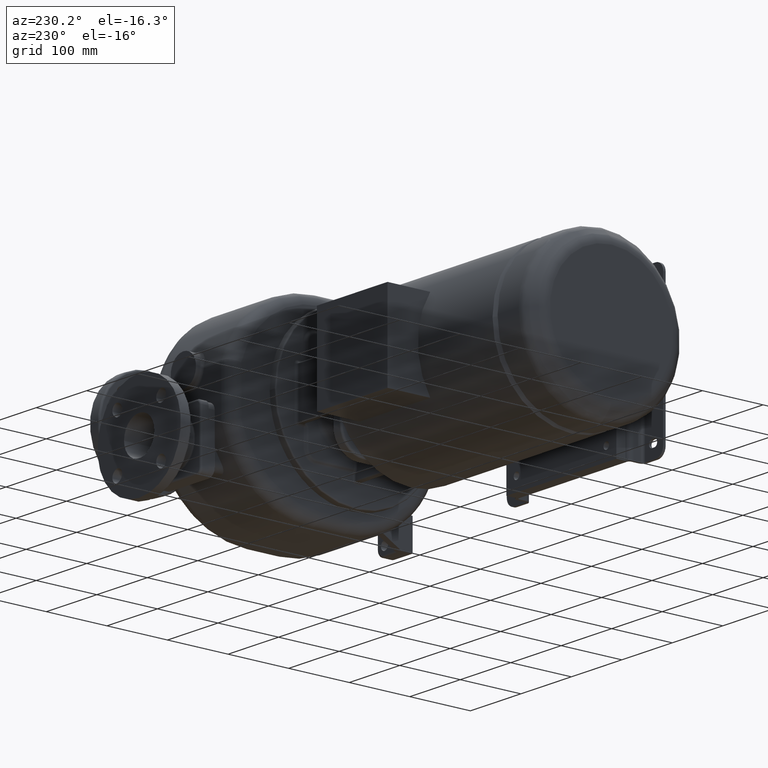
[diagram: clean part render]
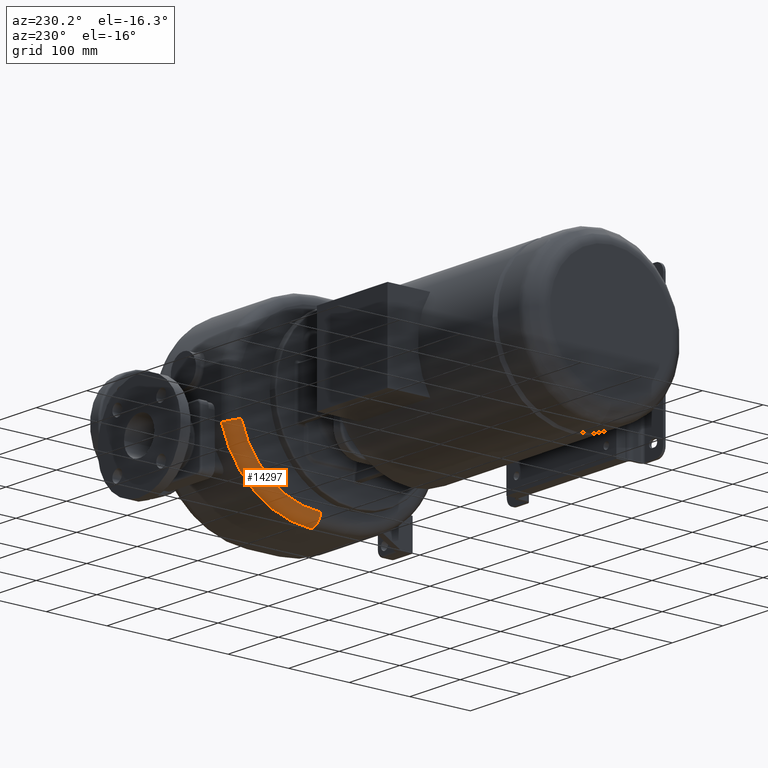
[diagram: same view with one face highlighted and labeled with its STEP entity id]
A machine part, auxiliary view. The second image highlights one B-rep face of the part: STEP entity #14297.
In plain terms, the highlighted toroidal blend (fillet) surface has major radius 136 mm and minor (blend) radius 18 mm.
Its self-contained STEP definition (entity closure, byte-faithful):
#1985=CARTESIAN_POINT('',(5.155E2,5.117894898810E1,-9.5E0));
#1986=DIRECTION('',(-1.E0,0.E0,0.E0));
#1987=DIRECTION('',(0.E0,9.619201134888E-1,-2.733307433600E-1));
#1988=AXIS2_PLACEMENT_3D('',#1985,#1986,#1987);
#2555=CARTESIAN_POINT('',(5.335E2,5.117894898810E1,-9.5E0));
#2556=DIRECTION('',(-1.E0,0.E0,0.E0));
#2557=DIRECTION('',(0.E0,9.635285819272E-1,-2.676054405451E-1));
#2558=AXIS2_PLACEMENT_3D('',#2555,#2556,#2557);
#2712=CARTESIAN_POINT('',(5.155E2,1.820000000036E2,-4.667327820096E1));
#2713=CARTESIAN_POINT('',(5.155000954798E2,1.821773503409E2,-4.671462694691E1));
#2714=CARTESIAN_POINT('',(5.155054727784E2,1.825314718426E2,-4.679894677864E1));
#2715=CARTESIAN_POINT('',(5.155302856190E2,1.830622911941E2,-4.692208302836E1));
#2716=CARTESIAN_POINT('',(5.155714422045E2,1.835914476546E2,-4.704575423503E1));
#2717=CARTESIAN_POINT('',(5.156289602469E2,1.841187943417E2,-4.716877915831E1));
#2718=CARTESIAN_POINT('',(5.157027400724E2,1.846438855050E2,-4.729132701427E1));
#2719=CARTESIAN_POINT('',(5.157927096068E2,1.851663635242E2,-4.741320370166E1));
#2720=CARTESIAN_POINT('',(5.158987856452E2,1.856858545004E2,-4.753430225570E1));
#2721=CARTESIAN_POINT('',(5.160208858085E2,1.862019900843E2,-4.765452100523E1));
#2722=CARTESIAN_POINT('',(5.161589223430E2,1.867144494644E2,-4.777355426316E1));
#2723=CARTESIAN_POINT('',(5.163127885198E2,1.872227824193E2,-4.789137400953E1));
#2724=CARTESIAN_POINT('',(5.164823686548E2,1.877265514922E2,-4.800793161292E1));
#2725=CARTESIAN_POINT('',(5.166675405097E2,1.882253238013E2,-4.812318385474E1));
#2726=CARTESIAN_POINT('',(5.168681254618E2,1.887185567952E2,-4.823705878610E1));
#2727=CARTESIAN_POINT('',(5.170839169828E2,1.892057092832E2,-4.834947501927E1));
#2728=CARTESIAN_POINT('',(5.173146862295E2,1.896862466296E2,-4.846036791884E1));
#2729=CARTESIAN_POINT('',(5.175601871574E2,1.901596797803E2,-4.856959688592E1));
#2730=CARTESIAN_POINT('',(5.178202163354E2,1.906256917622E2,-4.867686232420E1));
#2731=CARTESIAN_POINT('',(5.180945666229E2,1.910838867910E2,-4.878217161417E1));
#2732=CARTESIAN_POINT('',(5.183830294209E2,1.915339004953E2,-4.888546061036E1));
#2733=CARTESIAN_POINT('',(5.186853560598E2,1.919753164569E2,-4.898667068557E1));
#2734=CARTESIAN_POINT('',(5.190012422746E2,1.924076696613E2,-4.908572622154E1));
#2735=CARTESIAN_POINT('',(5.193303750927E2,1.928305242548E2,-4.918254259423E1));
#2736=CARTESIAN_POINT('',(5.196724190001E2,1.932434383235E2,-4.927707586271E1));
#2737=CARTESIAN_POINT('',(5.200270569522E2,1.936460739237E2,-4.936911012533E1));
#2738=CARTESIAN_POINT('',(5.203939698315E2,1.940380769572E2,-4.945855785221E1));
#2739=CARTESIAN_POINT('',(5.207728255957E2,1.944190826644E2,-4.954539296722E1));
#2740=CARTESIAN_POINT('',(5.211632810963E2,1.947887408564E2,-4.962956952847E1));
#2741=CARTESIAN_POINT('',(5.215649717502E2,1.951467018556E2,-4.971103987996E1));
#2742=CARTESIAN_POINT('',(5.219775232613E2,1.954926305617E2,-4.978975211534E1));
#2743=CARTESIAN_POINT('',(5.224005482671E2,1.958262045004E2,-4.986564602872E1));
#2744=CARTESIAN_POINT('',(5.228336649465E2,1.961471241112E2,-4.993867137120E1));
#2745=CARTESIAN_POINT('',(5.232765159071E2,1.964551708515E2,-5.000861160512E1));
#2746=CARTESIAN_POINT('',(5.237287337723E2,1.967500674213E2,-5.007547644598E1));
#2747=CARTESIAN_POINT('',(5.241899528777E2,1.970315588890E2,-5.013924050386E1));
#2748=CARTESIAN_POINT('',(5.246597525217E2,1.972993689512E2,-5.019987481930E1));
#2749=CARTESIAN_POINT('',(5.251376695610E2,1.975532200535E2,-5.025734004775E1));
#2750=CARTESIAN_POINT('',(5.256232381397E2,1.977928587070E2,-5.031159004086E1));
#2751=CARTESIAN_POINT('',(5.261159829437E2,1.980180465584E2,-5.036258635375E1));
#2752=CARTESIAN_POINT('',(5.266154187492E2,1.982285780993E2,-5.041023554508E1));
#2753=CARTESIAN_POINT('',(5.271210622406E2,1.984242685066E2,-5.045445022928E1));
#2754=CARTESIAN_POINT('',(5.276324212781E2,1.986049228212E2,-5.049523950325E1));
#2755=CARTESIAN_POINT('',(5.281490054733E2,1.987703754014E2,-5.053258381126E1));
#2756=CARTESIAN_POINT('',(5.286703803297E2,1.989204938414E2,-5.056646959576E1));
#2757=CARTESIAN_POINT('',(5.291961027114E2,1.990551557893E2,-5.059687539406E1));
#2758=CARTESIAN_POINT('',(5.297257306834E2,1.991742531237E2,-5.062377127660E1));
#2759=CARTESIAN_POINT('',(5.302588160318E2,1.992776857017E2,-5.064713082930E1));
#2760=CARTESIAN_POINT('',(5.307948808445E2,1.993653763565E2,-5.066687206750E1));
#2761=CARTESIAN_POINT('',(5.313334334249E2,1.994372272832E2,-5.068301990775E1));
#2762=CARTESIAN_POINT('',(5.318738938671E2,1.994931630445E2,-5.069559100107E1));
#2763=CARTESIAN_POINT('',(5.324159960334E2,1.995331223243E2,-5.070459082904E1));
#2764=CARTESIAN_POINT('',(5.329582799418E2,1.995570902843E2,-5.071001593925E1));
#2765=CARTESIAN_POINT('',(5.333219148498E2,1.995623506103E2,-5.071123615430E1));
#2766=CARTESIAN_POINT('',(5.335039844628E2,1.995623477910E2,-5.071124632752E1));
#2768=CARTESIAN_POINT('',(5.335E2,5.117894898810E1,-1.455E2));
#2769=DIRECTION('',(0.E0,-1.E0,0.E0));
#2770=DIRECTION('',(-1.E0,0.E0,0.E0));
#2771=AXIS2_PLACEMENT_3D('',#2768,#2769,#2770);
#11625=CARTESIAN_POINT('',(5.155E2,1.820000000009E2,-4.667319792734E1));
#11627=VERTEX_POINT('',#11625);
#11628=CARTESIAN_POINT('',(5.155E2,5.117894898810E1,-1.455E2));
#11629=VERTEX_POINT('',#11628);
#11630=CARTESIAN_POINT('',(5.335E2,1.995623506049E2,-5.071123784395E1));
#11631=CARTESIAN_POINT('',(5.335E2,5.117894898810E1,-1.635E2));
#11632=VERTEX_POINT('',#11630);
#11633=VERTEX_POINT('',#11631);
#14285=CARTESIAN_POINT('',(5.335E2,5.117894898810E1,-9.5E0));
#14286=DIRECTION('',(-1.E0,0.E0,0.E0));
#14287=DIRECTION('',(0.E0,-6.039586170138E-1,7.970156767184E-1));
#14288=AXIS2_PLACEMENT_3D('',#14285,#14286,#14287);
#14289=TOROIDAL_SURFACE('',#14288,1.36E2,1.8E1);
#14290=ORIENTED_EDGE('',*,*,#13772,.T.);
#14292=ORIENTED_EDGE('',*,*,#14291,.T.);
#14293=ORIENTED_EDGE('',*,*,#14171,.F.);
#14294=ORIENTED_EDGE('',*,*,#14279,.F.);
#14295=EDGE_LOOP('',(#14290,#14292,#14293,#14294));
#14296=FACE_OUTER_BOUND('',#14295,.F.);
#14297=ADVANCED_FACE('',(#14296),#14289,.T.);
#1989=CIRCLE('',#1988,1.36E2);
#2559=CIRCLE('',#2558,1.54E2);
#2767=B_SPLINE_CURVE_WITH_KNOTS('',3,(#2712,#2713,#2714,#2715,#2716,#2717,#2718,
#2719,#2720,#2721,#2722,#2723,#2724,#2725,#2726,#2727,#2728,#2729,#2730,#2731,
#2732,#2733,#2734,#2735,#2736,#2737,#2738,#2739,#2740,#2741,#2742,#2743,#2744,
#2745,#2746,#2747,#2748,#2749,#2750,#2751,#2752,#2753,#2754,#2755,#2756,#2757,
#2758,#2759,#2760,#2761,#2762,#2763,#2764,#2765,#2766),.UNSPECIFIED.,.F.,.F.,(4,
1,1,1,1,1,1,1,1,1,1,1,1,1,1,1,1,1,1,1,1,1,1,1,1,1,1,1,1,1,1,1,1,1,1,1,1,1,1,1,1,
1,1,1,1,1,1,1,1,1,1,1,4),(0.E0,1.923076923077E-2,3.846153846154E-2,
5.769230769231E-2,7.692307692308E-2,9.615384615385E-2,1.153846153846E-1,
1.346153846154E-1,1.538461538462E-1,1.730769230769E-1,1.923076923077E-1,
2.115384615385E-1,2.307692307692E-1,2.5E-1,2.692307692308E-1,2.884615384615E-1,
3.076923076923E-1,3.269230769231E-1,3.461538461538E-1,3.653846153846E-1,
3.846153846154E-1,4.038461538462E-1,4.230769230769E-1,4.423076923077E-1,
4.615384615385E-1,4.807692307692E-1,5.E-1,5.192307692308E-1,5.384615384615E-1,
5.576923076923E-1,5.769230769231E-1,5.961538461538E-1,6.153846153846E-1,
6.346153846154E-1,6.538461538462E-1,6.730769230769E-1,6.923076923077E-1,
7.115384615385E-1,7.307692307692E-1,7.5E-1,7.692307692308E-1,7.884615384615E-1,
8.076923076923E-1,8.269230769231E-1,8.461538461538E-1,8.653846153846E-1,
8.846153846154E-1,9.038461538462E-1,9.230769230769E-1,9.423076923077E-1,
9.615384615385E-1,9.807692307692E-1,1.E0),.UNSPECIFIED.);
#2772=CIRCLE('',#2771,1.8E1);
#13772=EDGE_CURVE('',#11627,#11629,#1989,.T.);
#14171=EDGE_CURVE('',#11632,#11633,#2559,.T.);
#14279=EDGE_CURVE('',#11627,#11632,#2767,.T.);
#14291=EDGE_CURVE('',#11629,#11633,#2772,.T.);